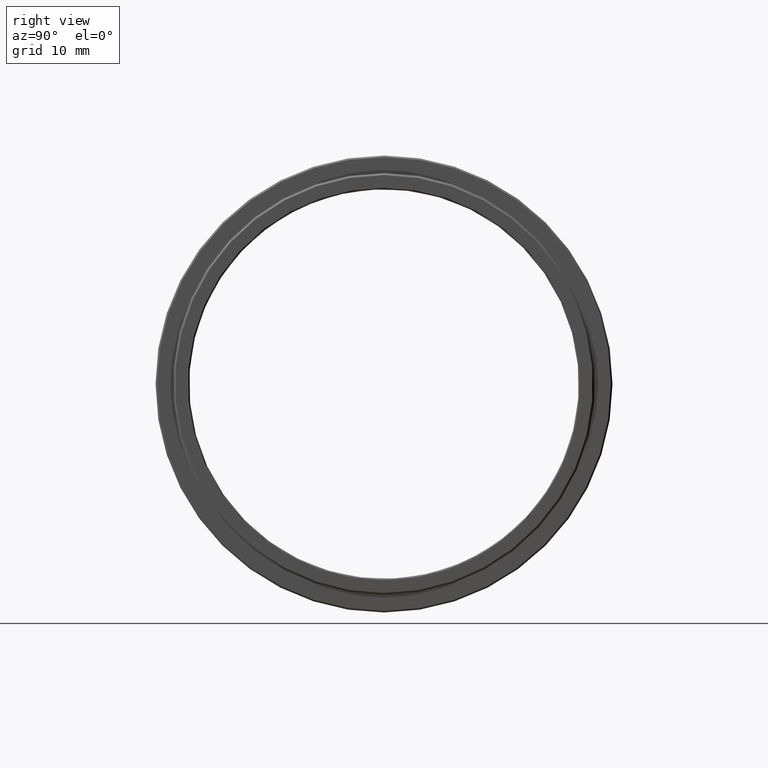
[diagram: clean part render]
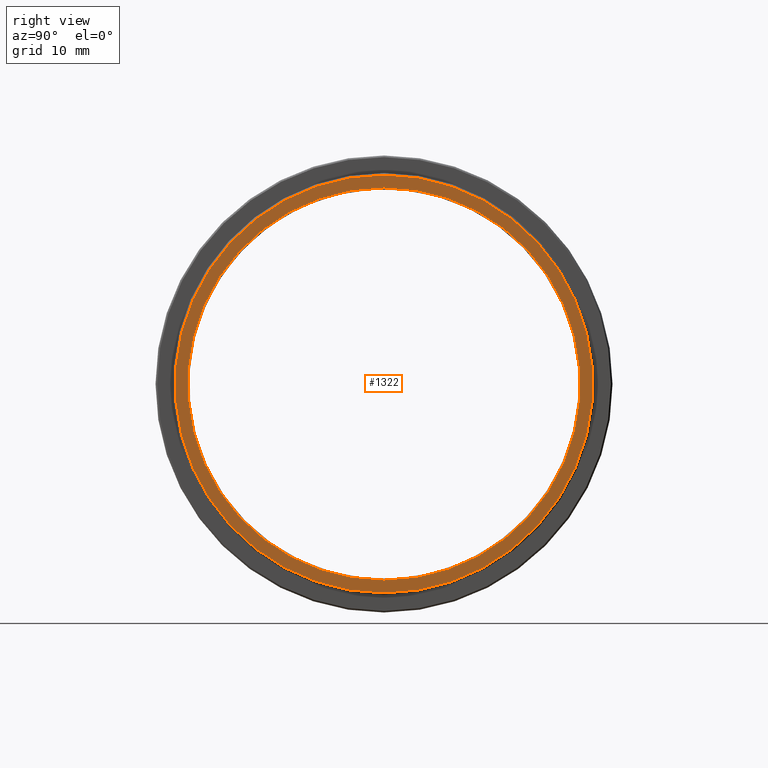
[diagram: same view with one face highlighted and labeled with its STEP entity id]
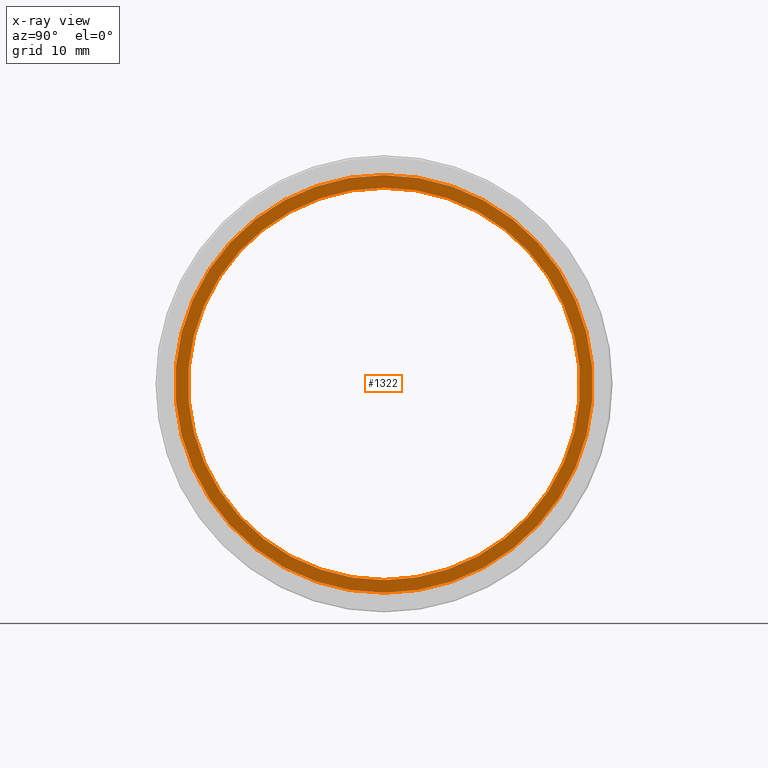
[diagram: x-ray of the same camera — body ghosted, the highlighted face saturated]
A machine part, right view. The second image highlights one B-rep face of the part: STEP entity #1322.
The next image is the same camera in x-ray: the body ghosted, the highlighted face saturated — about 0% of this face is hidden behind the body in this view.
In plain terms, the highlighted planar face has unit normal (1, 0, 0).
Its self-contained STEP definition (entity closure, byte-faithful):
#33 = CARTESIAN_POINT ( 'NONE',  ( 6.525999999999982926, -20.10857142857141966, 0.000000000000000000 ) ) ;
#49 = DIRECTION ( 'NONE',  ( 1.000000000000000000, 0.000000000000000000, 0.000000000000000000 ) ) ;
#73 = CARTESIAN_POINT ( 'NONE',  ( 6.525999999999982926, -20.10857142857141966, 0.000000000000000000 ) ) ;
#109 = CIRCLE ( 'NONE', #832, 25.55000000000001847 ) ;
#214 = EDGE_LOOP ( 'NONE', ( #1154, #833 ) ) ;
#220 = CIRCLE ( 'NONE', #588, 24.00000000000000355 ) ;
#227 = EDGE_CURVE ( 'NONE', #989, #1394, #109, .T. ) ;
#231 = CARTESIAN_POINT ( 'NONE',  ( 6.525999999999982926, -20.10857142857141966, 0.000000000000000000 ) ) ;
#349 = VERTEX_POINT ( 'NONE', #1136 ) ;
#393 = VERTEX_POINT ( 'NONE', #427 ) ;
#408 = EDGE_CURVE ( 'NONE', #393, #349, #1149, .T. ) ;
#412 = DIRECTION ( 'NONE',  ( 0.000000000000000000, 0.000000000000000000, -1.000000000000000000 ) ) ;
#427 = CARTESIAN_POINT ( 'NONE',  ( 6.525999999999982926, -20.10857142857141611, 24.00000000000000355 ) ) ;
#452 = DIRECTION ( 'NONE',  ( 1.000000000000000000, 0.000000000000000000, 0.000000000000000000 ) ) ;
#525 = EDGE_CURVE ( 'NONE', #349, #393, #220, .T. ) ;
#570 = DIRECTION ( 'NONE',  ( 1.000000000000000000, 0.000000000000000000, 0.000000000000000000 ) ) ;
#571 = FACE_OUTER_BOUND ( 'NONE', #214, .T. ) ;
#588 = AXIS2_PLACEMENT_3D ( 'NONE', #926, #452, #1047 ) ;
#718 = ORIENTED_EDGE ( 'NONE', *, *, #408, .F. ) ;
#792 = DIRECTION ( 'NONE',  ( 1.000000000000000000, 0.000000000000000000, 0.000000000000000000 ) ) ;
#812 = ORIENTED_EDGE ( 'NONE', *, *, #525, .F. ) ;
#832 = AXIS2_PLACEMENT_3D ( 'NONE', #231, #1227, #871 ) ;
#833 = ORIENTED_EDGE ( 'NONE', *, *, #227, .T. ) ;
#860 = CIRCLE ( 'NONE', #1493, 25.55000000000001847 ) ;
#864 = AXIS2_PLACEMENT_3D ( 'NONE', #73, #49, #1280 ) ;
#871 = DIRECTION ( 'NONE',  ( 0.000000000000000000, 0.000000000000000000, -1.000000000000000000 ) ) ;
#882 = FACE_BOUND ( 'NONE', #1549, .T. ) ;
#926 = CARTESIAN_POINT ( 'NONE',  ( 6.525999999999982926, -20.10857142857141966, 0.000000000000000000 ) ) ;
#989 = VERTEX_POINT ( 'NONE', #1505 ) ;
#1047 = DIRECTION ( 'NONE',  ( 0.000000000000000000, 0.000000000000000000, -1.000000000000000000 ) ) ;
#1123 = EDGE_CURVE ( 'NONE', #1394, #989, #860, .T. ) ;
#1136 = CARTESIAN_POINT ( 'NONE',  ( 6.525999999999982926, -20.10857142857141966, -24.00000000000000355 ) ) ;
#1149 = CIRCLE ( 'NONE', #1445, 24.00000000000000355 ) ;
#1154 = ORIENTED_EDGE ( 'NONE', *, *, #1123, .T. ) ;
#1201 = CARTESIAN_POINT ( 'NONE',  ( 6.525999999999982926, -20.10857142857141966, 25.55000000000001847 ) ) ;
#1227 = DIRECTION ( 'NONE',  ( 1.000000000000000000, 0.000000000000000000, 0.000000000000000000 ) ) ;
#1266 = DIRECTION ( 'NONE',  ( 0.000000000000000000, 0.000000000000000000, -1.000000000000000000 ) ) ;
#1280 = DIRECTION ( 'NONE',  ( 0.000000000000000000, 0.000000000000000000, -1.000000000000000000 ) ) ;
#1322 = ADVANCED_FACE ( 'NONE', ( #571, #882 ), #1411, .T. ) ;
#1394 = VERTEX_POINT ( 'NONE', #1201 ) ;
#1395 = CARTESIAN_POINT ( 'NONE',  ( 6.525999999999982926, -20.10857142857141966, 0.000000000000000000 ) ) ;
#1411 = PLANE ( 'NONE',  #864 ) ;
#1445 = AXIS2_PLACEMENT_3D ( 'NONE', #1395, #570, #1266 ) ;
#1493 = AXIS2_PLACEMENT_3D ( 'NONE', #33, #792, #412 ) ;
#1505 = CARTESIAN_POINT ( 'NONE',  ( 6.525999999999982926, -20.10857142857141611, -25.55000000000001847 ) ) ;
#1549 = EDGE_LOOP ( 'NONE', ( #812, #718 ) ) ;